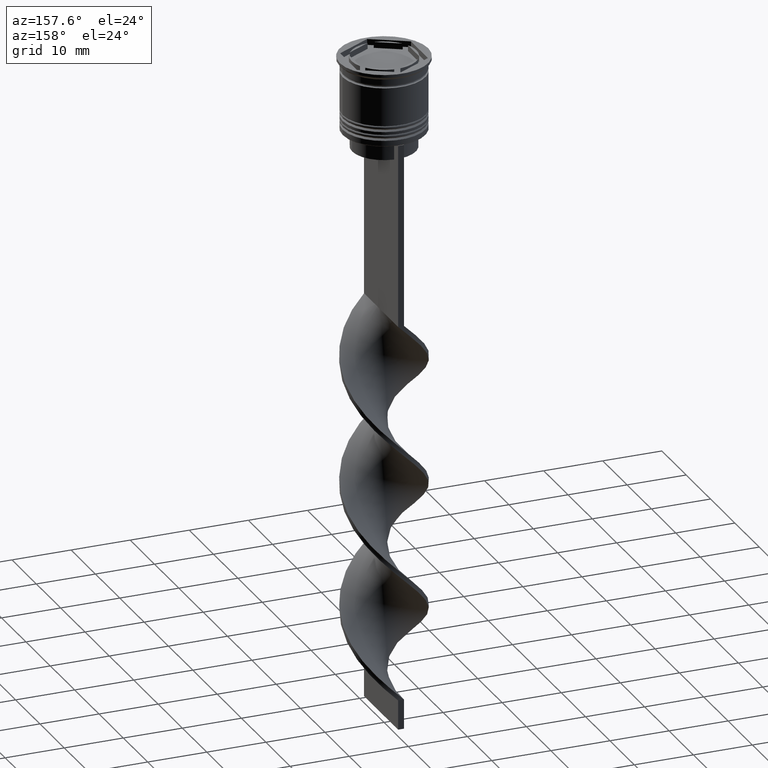
[diagram: clean part render]
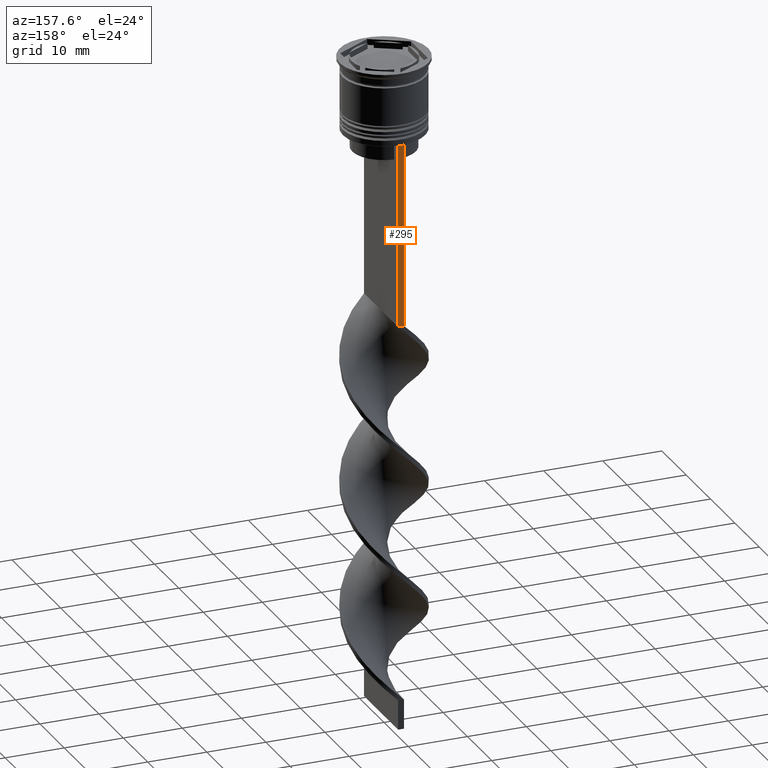
[diagram: same view with one face highlighted and labeled with its STEP entity id]
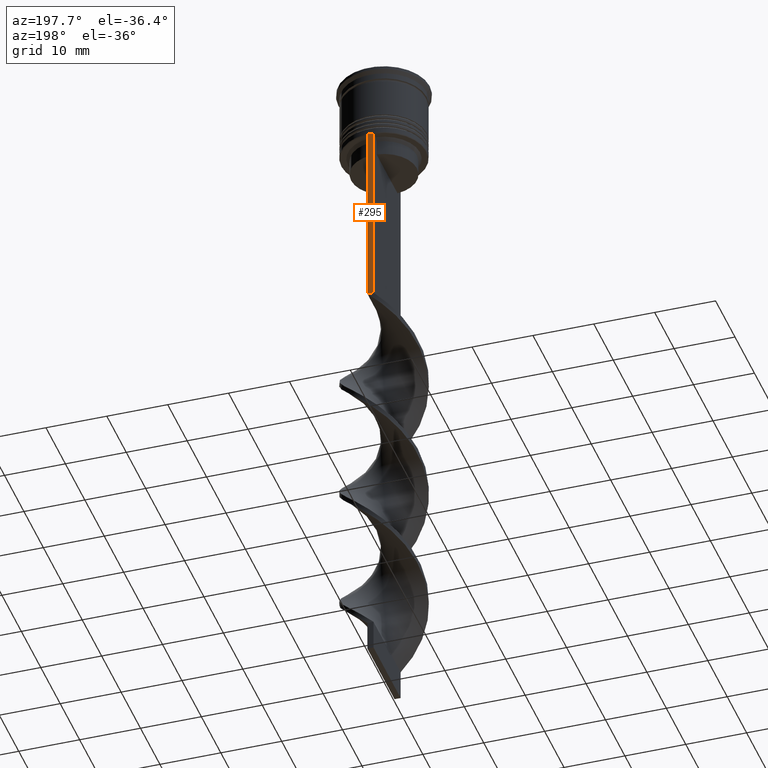
[diagram: same view with one face highlighted and labeled with its STEP entity id]
A machine part, auxiliary view. The second image highlights one B-rep face of the part: STEP entity #295.
A second angle (auxiliary view) of the same face is appended — the face is thin or edge-on in the first view.
In plain terms, the highlighted planar face has unit normal (0, -1, -0).
Its self-contained STEP definition (entity closure, byte-faithful):
#295 = ADVANCED_FACE ( 'NONE', ( #2200 ), #1404, .F. ) ;
#364 = EDGE_CURVE ( 'NONE', #2890, #917, #2306, .T. ) ;
#447 = LINE ( 'NONE', #2121, #3519 ) ;
#452 = ORIENTED_EDGE ( 'NONE', *, *, #364, .F. ) ;
#491 = VECTOR ( 'NONE', #2483, 1000.000000000000000 ) ;
#539 = ORIENTED_EDGE ( 'NONE', *, *, #1475, .T. ) ;
#638 = EDGE_CURVE ( 'NONE', #2890, #2630, #447, .T. ) ;
#836 = DIRECTION ( 'NONE',  ( 0.000000000000000000, -1.000000000000000000, -0.000000000000000000 ) ) ;
#843 = DIRECTION ( 'NONE',  ( -1.000000000000000000, 0.000000000000000000, 0.000000000000000000 ) ) ;
#917 = VERTEX_POINT ( 'NONE', #1407 ) ;
#1102 = CARTESIAN_POINT ( 'NONE',  ( -0.5000000000000000000, 7.000000000000002665, -12.50000000000000000 ) ) ;
#1173 = VERTEX_POINT ( 'NONE', #2107 ) ;
#1305 = CARTESIAN_POINT ( 'NONE',  ( 0.5000000000000000000, 7.000000000000002665, -12.50000000000000000 ) ) ;
#1384 = CARTESIAN_POINT ( 'NONE',  ( 0.5000000000000000000, 7.000000000000002665, 1.535668847618198329 ) ) ;
#1404 = PLANE ( 'NONE',  #3579 ) ;
#1407 = CARTESIAN_POINT ( 'NONE',  ( -0.5000000000000000000, 7.000000000000002665, -43.50000000000000000 ) ) ;
#1437 = DIRECTION ( 'NONE',  ( 0.000000000000000000, 0.000000000000000000, -1.000000000000000000 ) ) ;
#1475 = EDGE_CURVE ( 'NONE', #2630, #1173, #2434, .T. ) ;
#1558 = DIRECTION ( 'NONE',  ( 1.000000000000000000, 0.000000000000000000, 0.000000000000000000 ) ) ;
#1585 = LINE ( 'NONE', #2206, #2946 ) ;
#1701 = EDGE_LOOP ( 'NONE', ( #452, #2411, #539, #3093 ) ) ;
#2055 = VECTOR ( 'NONE', #1437, 1000.000000000000000 ) ;
#2107 = CARTESIAN_POINT ( 'NONE',  ( 0.5000000000000000000, 7.000000000000002665, -43.50000000000000000 ) ) ;
#2121 = CARTESIAN_POINT ( 'NONE',  ( 0.5000000000000000000, 7.000000000000002665, -12.50000000000000000 ) ) ;
#2183 = CARTESIAN_POINT ( 'NONE',  ( 0.5000000000000000000, 7.000000000000002665, 1.535668847618198329 ) ) ;
#2200 = FACE_OUTER_BOUND ( 'NONE', #1701, .T. ) ;
#2206 = CARTESIAN_POINT ( 'NONE',  ( 0.5000000000000000000, 7.000000000000002665, -43.50000000000000000 ) ) ;
#2306 = LINE ( 'NONE', #3442, #2055 ) ;
#2411 = ORIENTED_EDGE ( 'NONE', *, *, #638, .T. ) ;
#2434 = LINE ( 'NONE', #1384, #491 ) ;
#2483 = DIRECTION ( 'NONE',  ( 0.000000000000000000, 0.000000000000000000, -1.000000000000000000 ) ) ;
#2630 = VERTEX_POINT ( 'NONE', #1305 ) ;
#2890 = VERTEX_POINT ( 'NONE', #1102 ) ;
#2946 = VECTOR ( 'NONE', #843, 1000.000000000000000 ) ;
#3093 = ORIENTED_EDGE ( 'NONE', *, *, #3153, .T. ) ;
#3153 = EDGE_CURVE ( 'NONE', #1173, #917, #1585, .T. ) ;
#3442 = CARTESIAN_POINT ( 'NONE',  ( -0.5000000000000000000, 7.000000000000002665, 1.535668847618198329 ) ) ;
#3519 = VECTOR ( 'NONE', #1558, 1000.000000000000000 ) ;
#3579 = AXIS2_PLACEMENT_3D ( 'NONE', #2183, #836, #3599 ) ;
#3599 = DIRECTION ( 'NONE',  ( 0.000000000000000000, 0.000000000000000000, -1.000000000000000000 ) ) ;